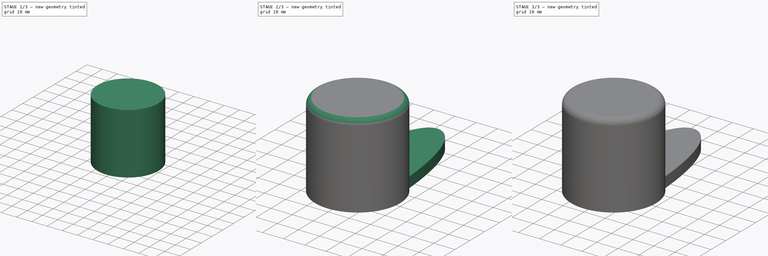
[diagram: build sequence overview — one tinted view per stage of 3, left to right]
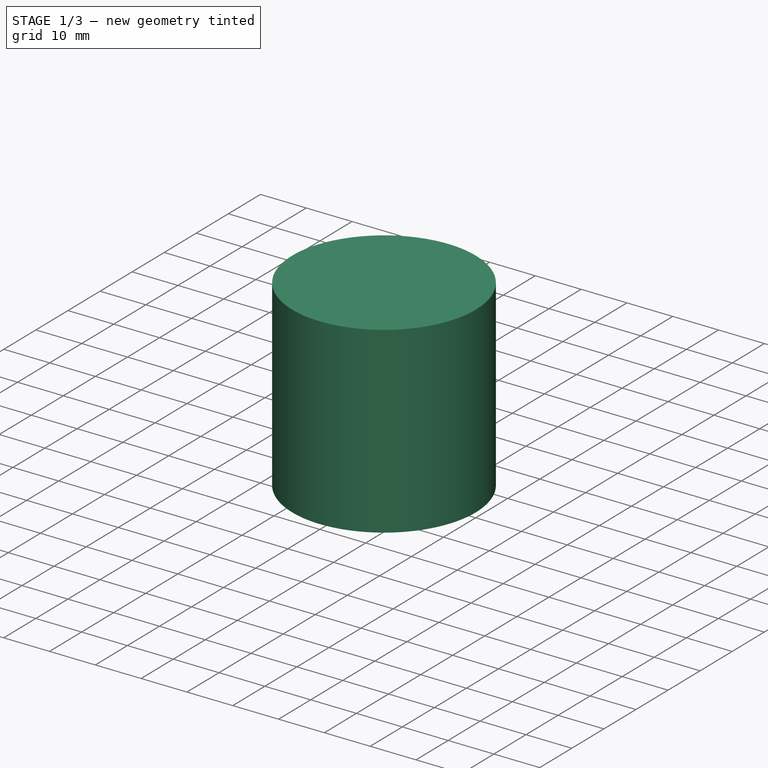
[diagram: stage 1 of 3 — iso view after this stage's code; geometry added in this stage tinted green]
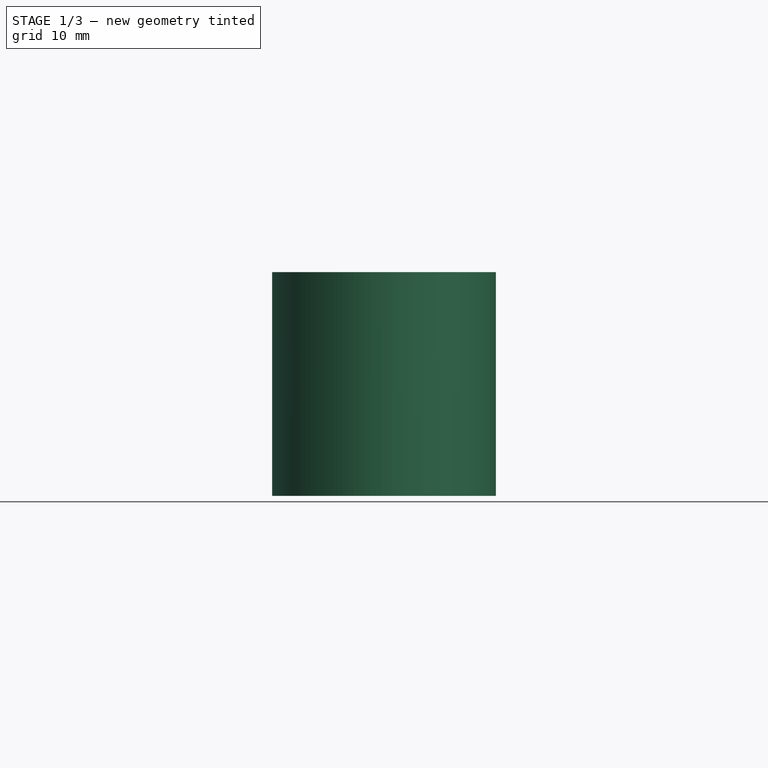
[diagram: stage 1 of 3 — front view after this stage's code; geometry added in this stage tinted green]
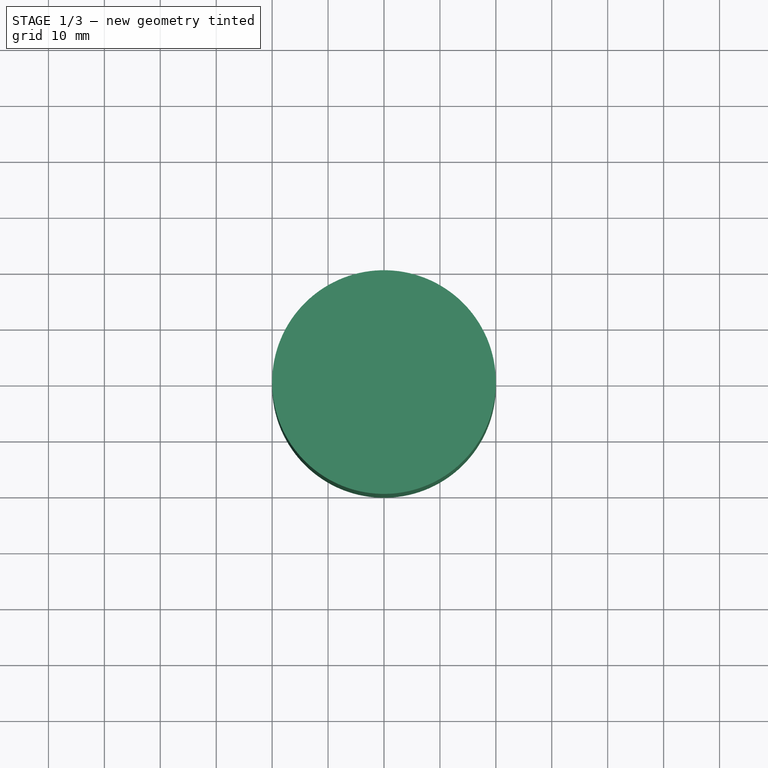
[diagram: stage 1 of 3 — top view after this stage's code; geometry added in this stage tinted green]
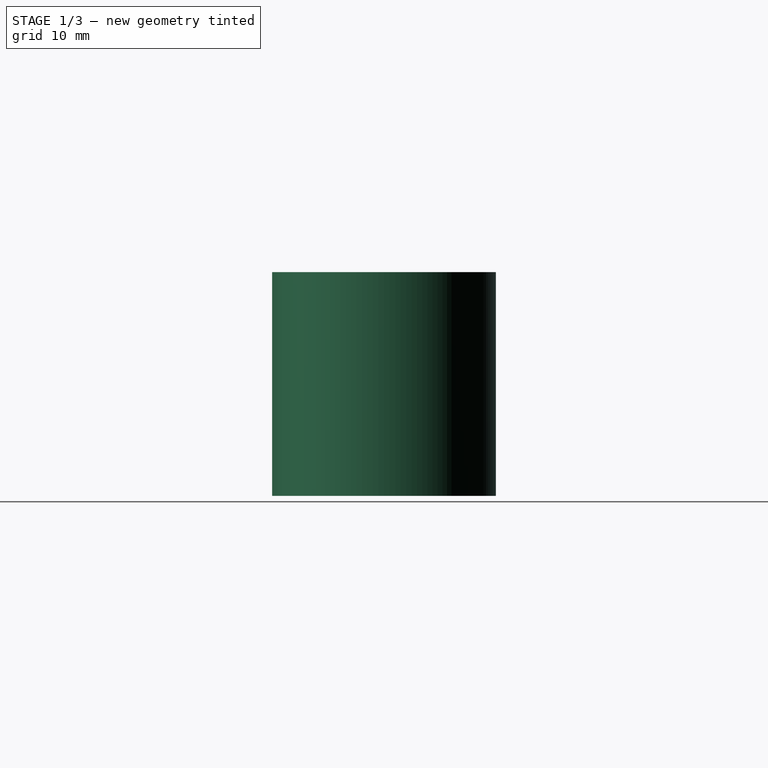
[diagram: stage 1 of 3 — right view after this stage's code; geometry added in this stage tinted green]
FCSTD DOCUMENT  (FreeCAD 0.22R36822 (Git))
Label: laundry scoop
License: All rights reserved
LicenseURL: http://en.wikipedia.org/wiki/All_rights_reserved
objects: Sketcher::SketchObject×4, PartDesign::Pad×3, PartDesign::Fillet×3, PartDesign::Plane×2, PartDesign::Pocket×1, PartDesign::Body×1
note: 21 computed .brp shape members not serialized (recipe doc carries the construction recipe); baked Part::Feature solids carry a one-line shape summary decoded from their .brp

FEATURE [Sketcher::SketchObject] Sketch
  AttachmentSupport = -> [XY_Plane]
  FullyConstrained = true
  MapMode = 5
  sketch-geometry (1):
    g0: Circle CenterX=0 CenterY=0 CenterZ=0 NormalX=0 NormalY=0 NormalZ=1 AngleXU=0 Radius=20
  constraints (2):
    c: Coincident(g0,g-1)
    c: Diameter(g0) = 40
FEATURE [PartDesign::Pad] Pad
  Direction = (0,0,1)
  Length = 40
  Length2 = 10
  Profile = -> Sketch
  ReferenceAxis = -> Sketch [N_Axis]
  Suppressed = false
  Type = 0
FEATURE [Sketcher::SketchObject] Sketch001
  AttachmentSupport = -> [Pad]
  FullyConstrained = true
  MapMode = 5
  Placement = pos=(0,0,0) rot=(1,0,0;3.14159rad)
  sketch-geometry (1):
    g0: Circle CenterX=0 CenterY=0 CenterZ=0 NormalX=0 NormalY=0 NormalZ=1 AngleXU=0 Radius=18
  constraints (2):
    c: Coincident(g0,g-1)
    c: Diameter(g0) = 36
FEATURE [PartDesign::Pocket] Pocket
  BaseFeature = -> Pad
  Direction = (0,0,1)
  Length = 35
  Length2 = 5
  Profile = -> Sketch001
  ReferenceAxis = -> Sketch001 [N_Axis]
  Suppressed = false
  Type = 0
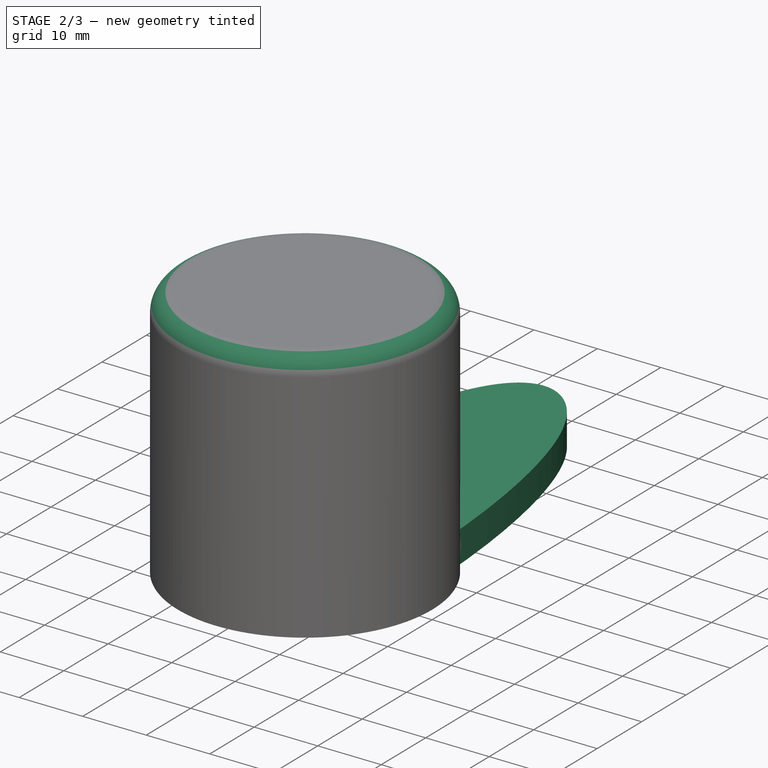
[diagram: stage 2 of 3 — iso view after this stage's code; geometry added in this stage tinted green]
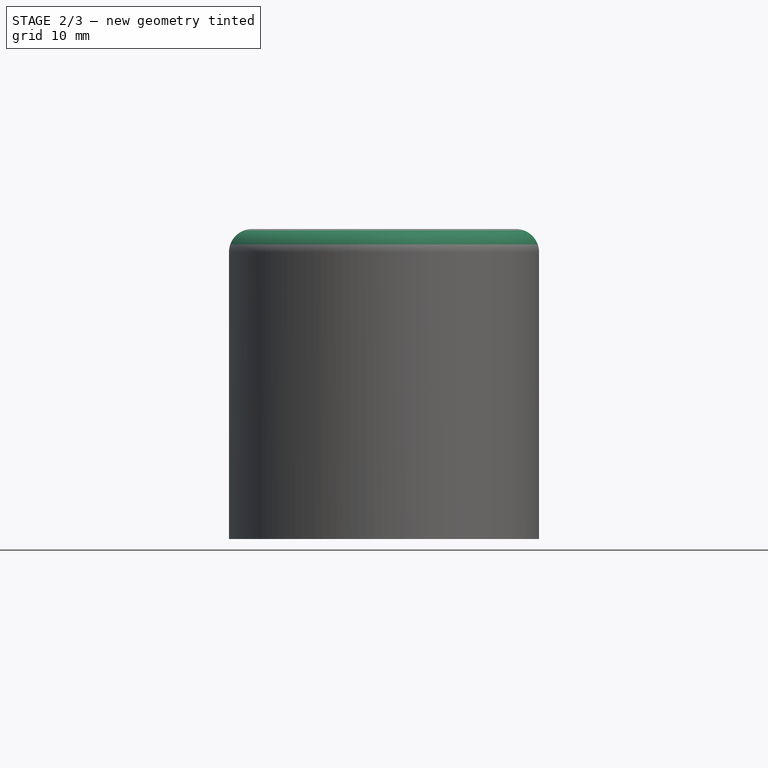
[diagram: stage 2 of 3 — front view after this stage's code; geometry added in this stage tinted green]
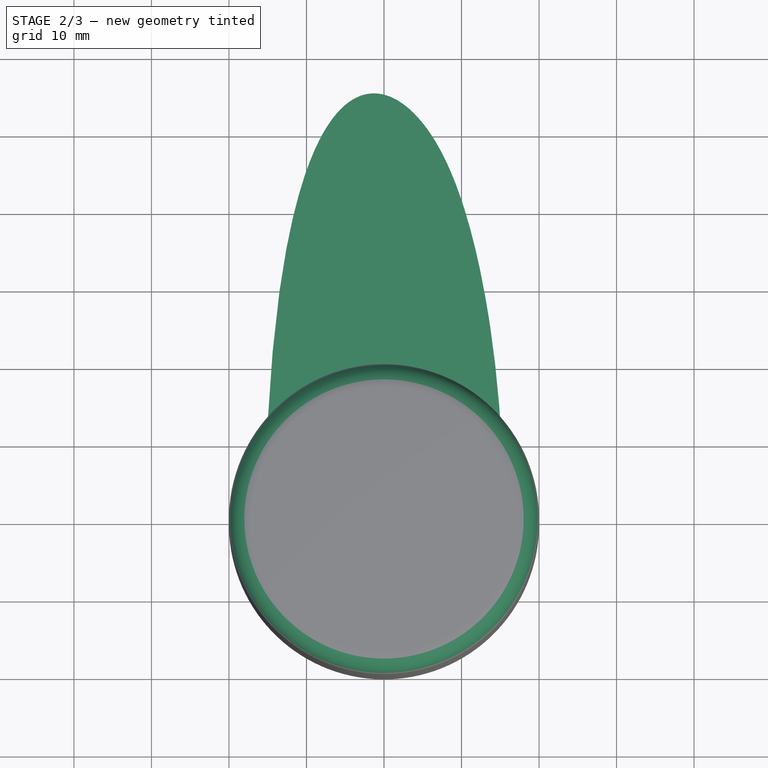
[diagram: stage 2 of 3 — top view after this stage's code; geometry added in this stage tinted green]
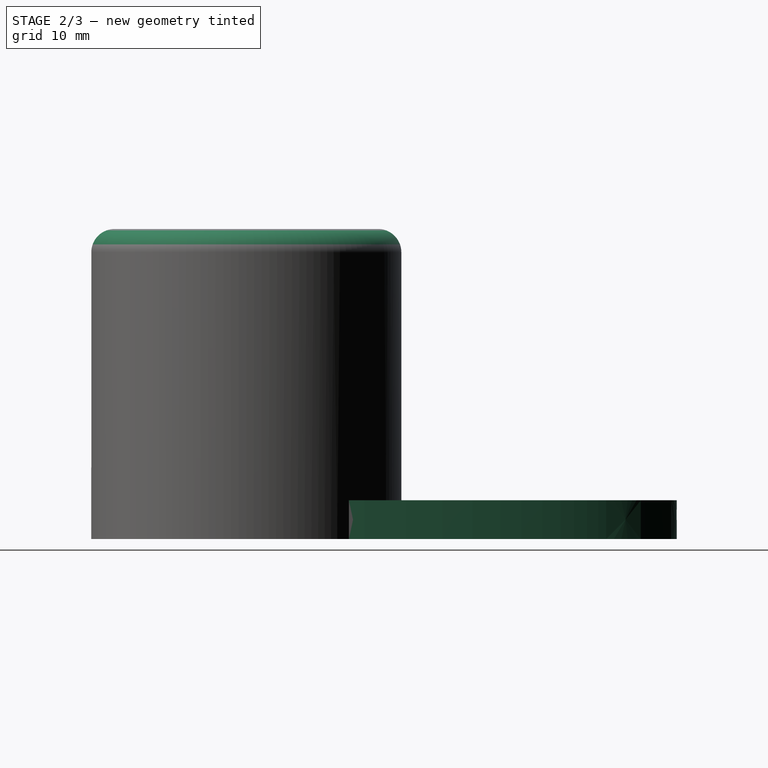
[diagram: stage 2 of 3 — right view after this stage's code; geometry added in this stage tinted green]
FEATURE [PartDesign::Fillet] Fillet
  Base = -> Pocket [Face5]
  BaseFeature = -> Pocket
  Radius = 18
  SupportTransform = false
  Suppressed = false
  UseAllEdges = false
FEATURE [PartDesign::Fillet] Fillet001
  Base = -> Fillet [Edge8]
  BaseFeature = -> Fillet
  Radius = 3
  SupportTransform = false
  Suppressed = false
  UseAllEdges = false
FEATURE [PartDesign::Plane] DatumPlane
  AttachmentOffset = pos=(0,-17,0) rot=(1,0,0;1.5708rad)
  AttachmentSupport = -> [Fillet001]
  Length = 61.4018
  MapMode = 45
  Placement = pos=(7.1e-15,-17,18.5) rot=(1,0,0;1.5708rad)
  ResizeMode = 0
  Width = 76.4018
FEATURE [Sketcher::SketchObject] Sketch002
  AttachmentSupport = -> [Fillet001]
  ExternalGeometry = -> [Fillet001]
  FullyConstrained = false
  MapMode = 5
  Placement = pos=(0,0,0) rot=(1,0,0;3.14159rad)
  sketch-geometry (14):
    g0-g4: Circle x5 (B-spline internal-alignment scaffolding for g5; pole/knot coordinates omitted)
    g5: BSplineCurve PolesCount=5 KnotsCount=3 Degree=3 IsPeriodic=0
    g6: GeomPoint X=-15 Y=-13.2288 Z=0
    g7: GeomPoint X=6.875 Y=-48.9085 Z=0
    g8: GeomPoint X=15 Y=-13.2288 Z=0
    g9: GeomPoint X=0 Y=-60.8018 Z=0
    g10: LineSegment StartX=-15 StartY=-13.2288 StartZ=0 EndX=-4.63681 EndY=-18.6263 EndZ=0
    g11: LineSegment StartX=-4.63681 StartY=-18.6263 StartZ=0 EndX=2.92214 EndY=-18.6263 EndZ=0
    g12: LineSegment StartX=2.92214 StartY=-18.6263 StartZ=0 EndX=9.7556 EndY=-16.3682 EndZ=0
    g13: LineSegment StartX=9.7556 StartY=-16.3682 StartZ=0 EndX=15 EndY=-13.2288 EndZ=0
  constraints (24):
    c: Weight(g0) = 1
    c: PointOnObject(g5,g-3)
    c: Equal(g0,g1)
    c: Equal(g0,g2)
    c: Equal(g0,g3)
    c: PointOnObject(g3,g-3)
    c: Equal(g0,g4)
    c: Coincident(g5,g3)
    c: InternalAlignment(g0-g4 -> g5) x5
    c: InternalAlignment(g6,g5)
    c: InternalAlignment(g7,g5)
    c: InternalAlignment(g8,g5)
    c: Horizontal(g1,g2)
    c: Horizontal(g4,g5)
    c: DistanceX(g5,g4) = 30
    c: DistanceX(g1,g2) = 25
    c: PointOnObject(g9,g-2)
    c: Symmetric(g1,g2,g9)
    c: Coincident(g10,g5)
    c: Coincident(g10,g11)
    c: Horizontal(g11)
    c: Coincident(g11,g12)
    c: Coincident(g12,g13)
    c: Coincident(g13,g4)
FEATURE [PartDesign::Pad] Pad001
  BaseFeature = -> Fillet001
  Direction = (0,0,-1)
  Length = 5
  Length2 = 10
  Profile = -> Sketch002
  ReferenceAxis = -> Sketch002 [N_Axis]
  Reversed = true
  Suppressed = false
  Type = 0
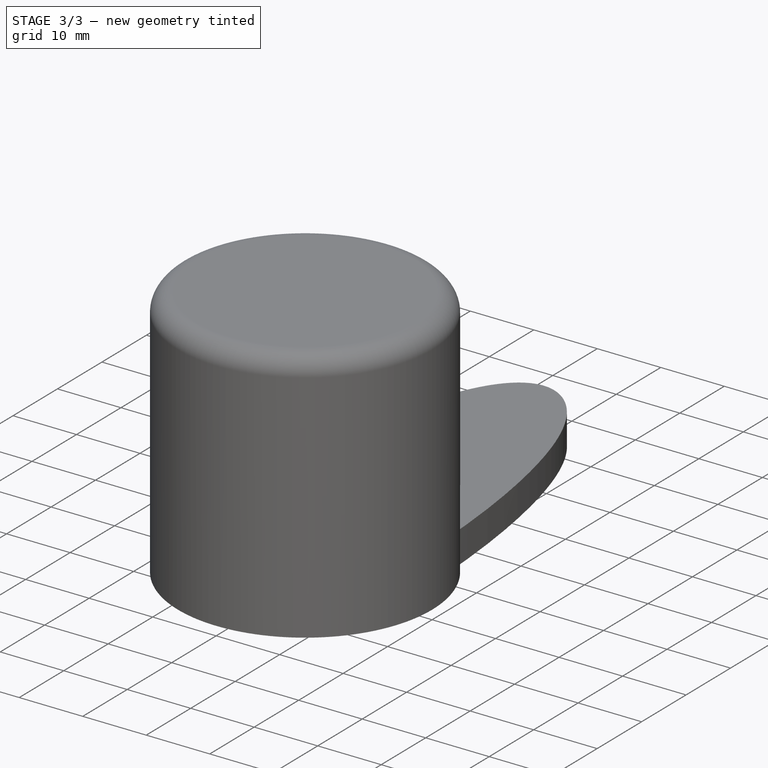
[diagram: stage 3 of 3 — iso view after this stage's code; geometry added in this stage tinted green]
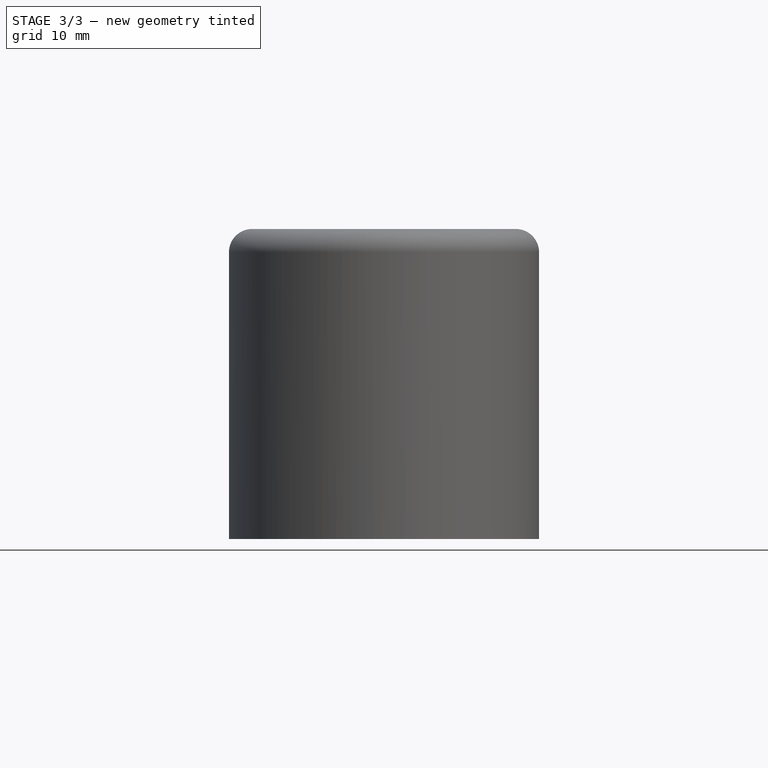
[diagram: stage 3 of 3 — front view after this stage's code; geometry added in this stage tinted green]
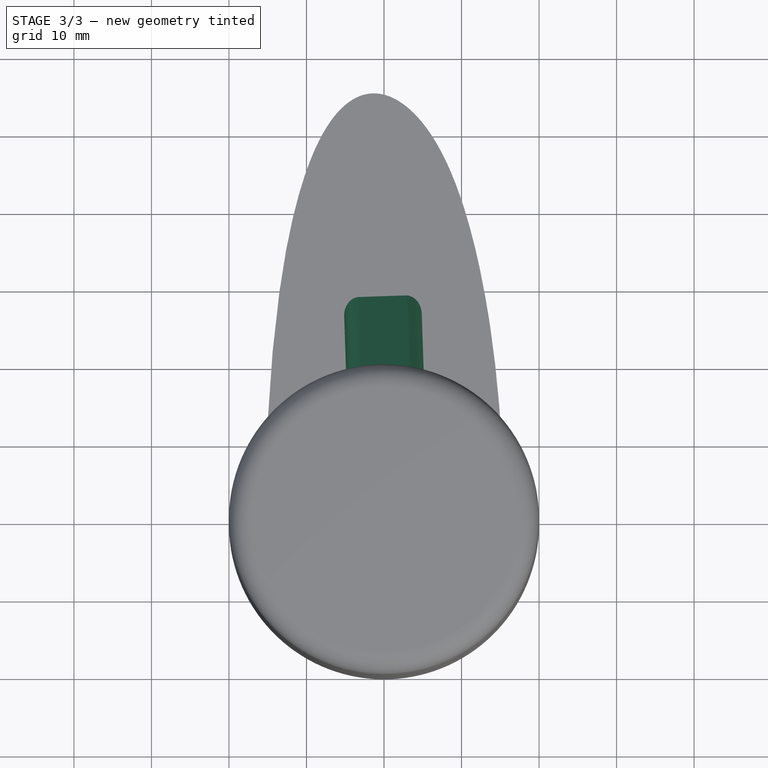
[diagram: stage 3 of 3 — top view after this stage's code; geometry added in this stage tinted green]
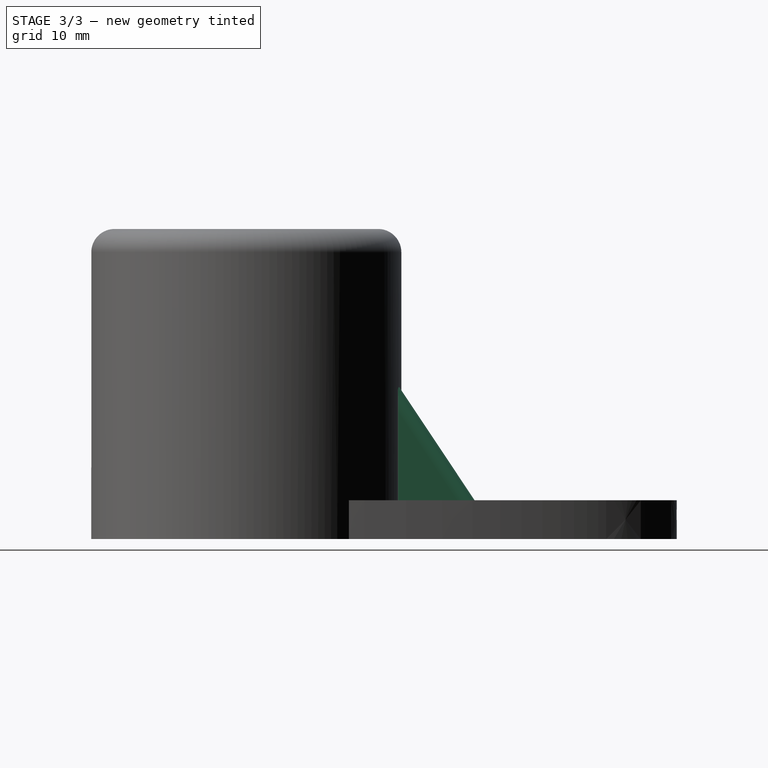
[diagram: stage 3 of 3 — right view after this stage's code; geometry added in this stage tinted green]
FEATURE [PartDesign::Plane] DatumPlane001
  AttachmentOffset = pos=(0,0,0) rot=(0.043578,0.998099,-0.043578;1.5727rad)
  AttachmentSupport = -> [Pad001]
  Length = 79.6125
  MapMode = 45
  Placement = pos=(-0.443704,36.2003,2.5) rot=(-0.016746,0.99972,0.016746;1.57108rad)
  ResizeMode = 0
  Width = 96.7377
FEATURE [Sketcher::SketchObject] Sketch003
  AttachmentSupport = -> [DatumPlane001]
  ExternalGeometry = -> [Pad001]
  FullyConstrained = false
  MapMode = 5
  Placement = pos=(-0.443704,36.2003,2.5) rot=(-0.016746,0.99972,0.016746;1.57108rad)
  sketch-geometry (3):
    g0: LineSegment StartX=-2.4 StartY=-16.7908 StartZ=0 EndX=-17.4 EndY=-16.7908 EndZ=0
    g1: LineSegment StartX=-17.4 StartY=-16.7908 StartZ=0 EndX=-2.4 EndY=-6.79079 EndZ=0
    g2: LineSegment StartX=-2.4 StartY=-16.7908 StartZ=0 EndX=-2.4 EndY=-6.79079 EndZ=0
  constraints (8):
    c: Horizontal(g0)
    c: Coincident(g1,g0)
    c: Coincident(g2,g0)
    c: Coincident(g2,g1)
    c: Vertical(g2)
    c: DistanceY(g2,g2) = 10
    c: DistanceX(g0,g0) = 15
    c: DistanceX(g-3,g0) = 0.1
FEATURE [PartDesign::Pad] Pad002
  BaseFeature = -> Pad001
  Direction = (0.999439,0.0334912,2e-16)
  Length = 10
  Length2 = 10
  Midplane = true
  Profile = -> Sketch003
  ReferenceAxis = -> Sketch003 [N_Axis]
  Suppressed = false
  Type = 0
FEATURE [PartDesign::Fillet] Fillet002
  Base = -> Pad002 [Edge25,Edge26]
  BaseFeature = -> Pad002
  Radius = 2
  SupportTransform = false
  Suppressed = false
  UseAllEdges = false
FEATURE [PartDesign::Body] Body
  Group = -> [Sketch,Pad,Sketch001,Pocket,Fillet,Fillet001,DatumPlane,Sketch002,Pad001,DatumPlane001,Sketch003,Pad002,Fillet002]
  Origin = -> Origin
  Tip = -> Fillet002
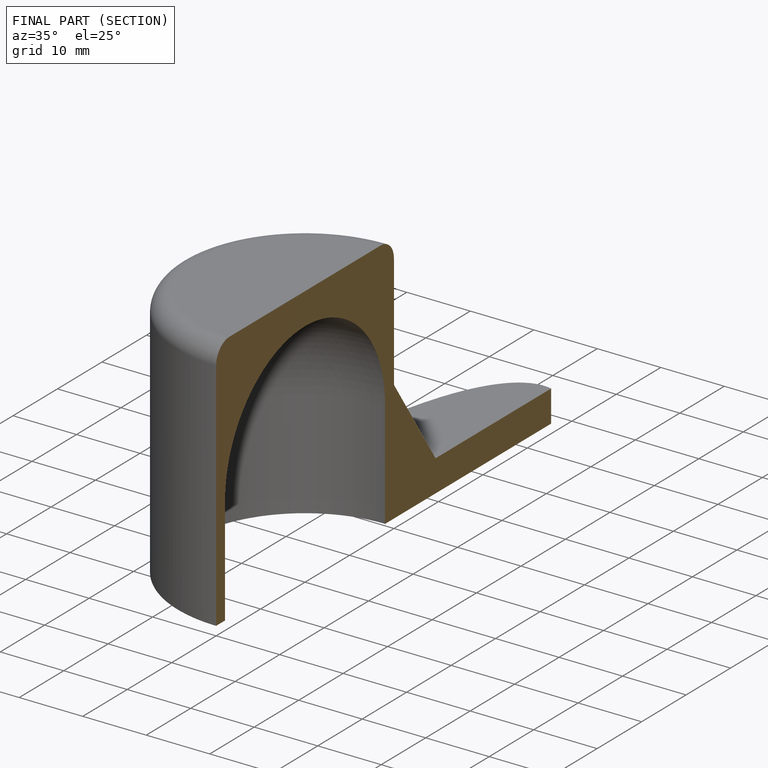
[diagram: finished part — half-section view (interior)]
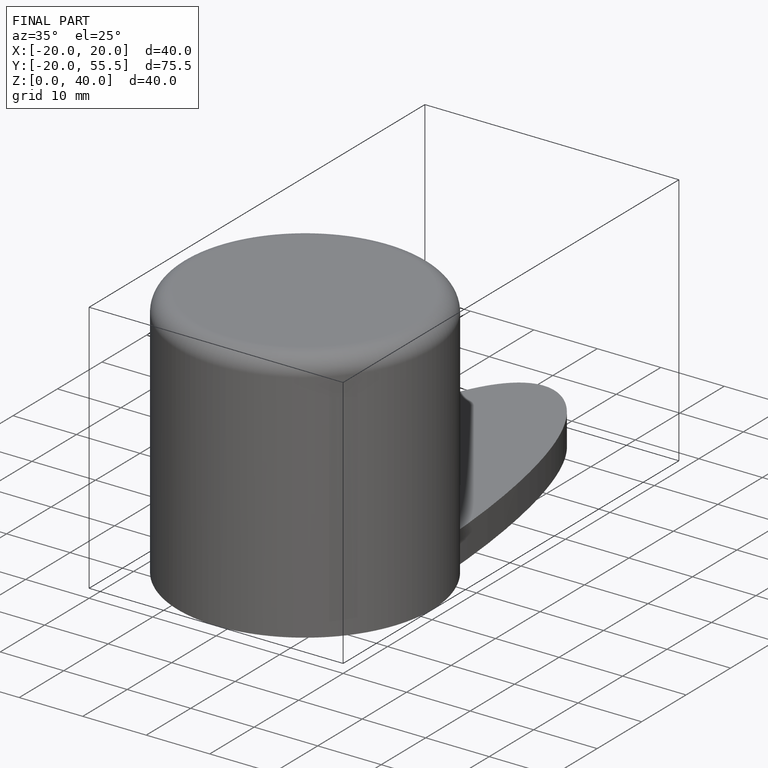
[diagram: finished part — iso view with bounding-box wireframe]
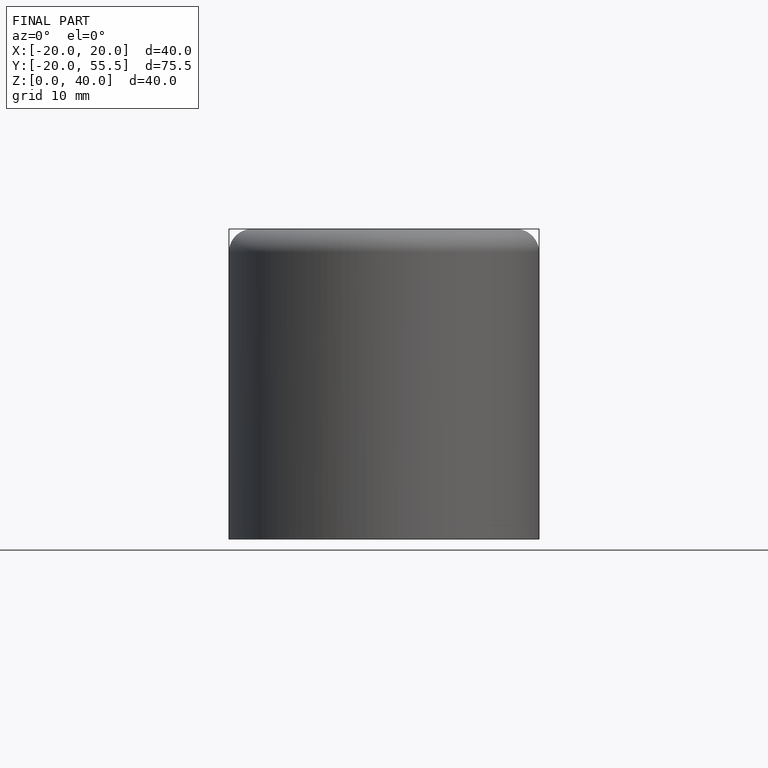
[diagram: finished part — front view with bounding-box wireframe]
